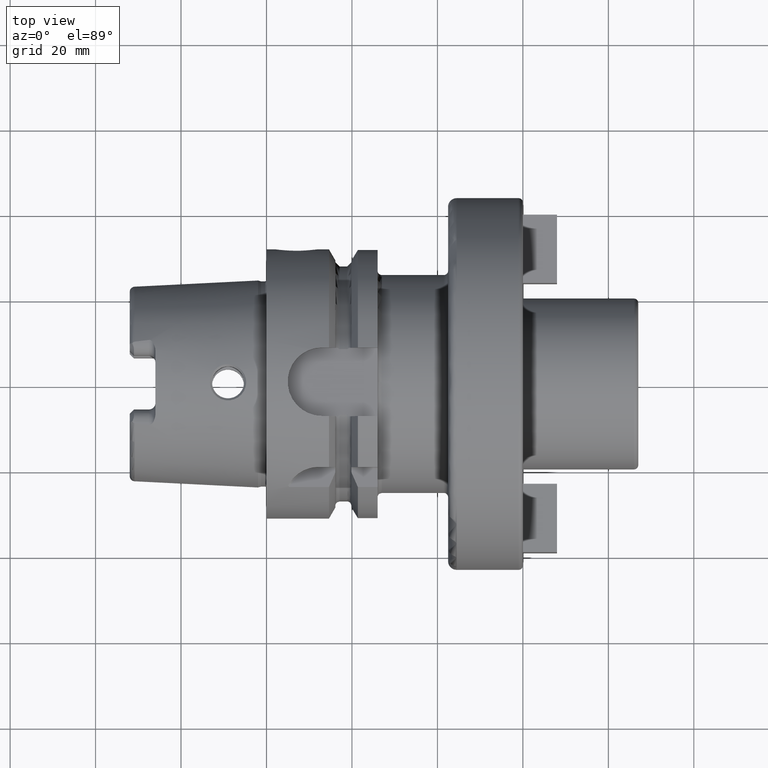
[diagram: clean part render]
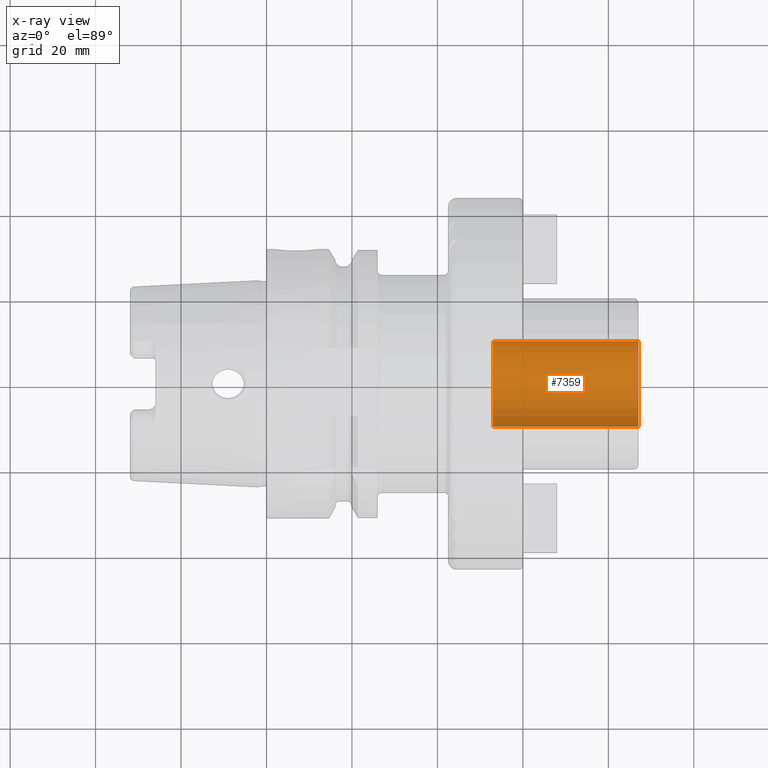
[diagram: x-ray — body ghosted, one internal face saturated and labeled with its STEP entity id]
A machine part, top view, then the same camera in x-ray: the body is ghosted and one INTERNAL B-rep face — a face not visible from any outside direction — is saturated and labeled: STEP entity #7359.
In plain terms, the highlighted cylindrical surface (partial cylindrical patch) has radius 10 mm, axis along (1, 0, 0).
Its self-contained STEP definition (entity closure, byte-faithful):
#7294=CARTESIAN_POINT('',(8.7E1,0.E0,0.E0));
#7295=DIRECTION('',(-1.E0,0.E0,0.E0));
#7296=DIRECTION('',(0.E0,1.E0,0.E0));
#7297=AXIS2_PLACEMENT_3D('',#7294,#7295,#7296);
#7304=DIRECTION('',(-1.E0,0.E0,0.E0));
#7305=VECTOR('',#7304,3.4E1);
#7306=CARTESIAN_POINT('',(8.7E1,1.E1,0.E0));
#7307=LINE('',#7306,#7305);
#7308=DIRECTION('',(-1.E0,0.E0,0.E0));
#7309=VECTOR('',#7308,3.4E1);
#7310=CARTESIAN_POINT('',(8.7E1,-1.E1,0.E0));
#7311=LINE('',#7310,#7309);
#7312=CARTESIAN_POINT('',(5.3E1,0.E0,0.E0));
#7313=DIRECTION('',(1.E0,0.E0,0.E0));
#7314=DIRECTION('',(0.E0,-1.E0,0.E0));
#7315=AXIS2_PLACEMENT_3D('',#7312,#7313,#7314);
#7332=CARTESIAN_POINT('',(5.3E1,-1.E1,0.E0));
#7333=CARTESIAN_POINT('',(5.3E1,1.E1,0.E0));
#7334=VERTEX_POINT('',#7332);
#7335=VERTEX_POINT('',#7333);
#7336=CARTESIAN_POINT('',(8.7E1,-1.E1,0.E0));
#7337=CARTESIAN_POINT('',(8.7E1,1.E1,0.E0));
#7338=VERTEX_POINT('',#7336);
#7339=VERTEX_POINT('',#7337);
#7344=CARTESIAN_POINT('',(3.422959306268E1,0.E0,0.E0));
#7345=DIRECTION('',(1.E0,0.E0,0.E0));
#7346=DIRECTION('',(0.E0,-1.E0,0.E0));
#7347=AXIS2_PLACEMENT_3D('',#7344,#7345,#7346);
#7348=CYLINDRICAL_SURFACE('',#7347,1.E1);
#7350=ORIENTED_EDGE('',*,*,#7349,.T.);
#7352=ORIENTED_EDGE('',*,*,#7351,.T.);
#7354=ORIENTED_EDGE('',*,*,#7353,.T.);
#7356=ORIENTED_EDGE('',*,*,#7355,.F.);
#7357=EDGE_LOOP('',(#7350,#7352,#7354,#7356));
#7358=FACE_OUTER_BOUND('',#7357,.F.);
#7359=ADVANCED_FACE('',(#7358),#7348,.F.);
#7298=CIRCLE('',#7297,1.E1);
#7316=CIRCLE('',#7315,1.E1);
#7349=EDGE_CURVE('',#7339,#7338,#7298,.T.);
#7351=EDGE_CURVE('',#7338,#7334,#7311,.T.);
#7353=EDGE_CURVE('',#7334,#7335,#7316,.T.);
#7355=EDGE_CURVE('',#7339,#7335,#7307,.T.);